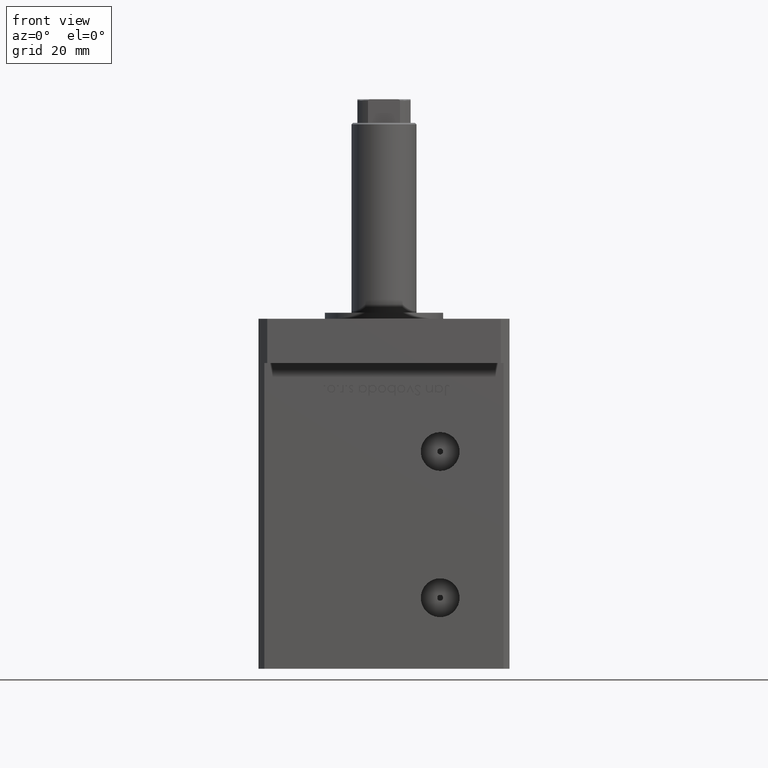
[diagram: clean part render]
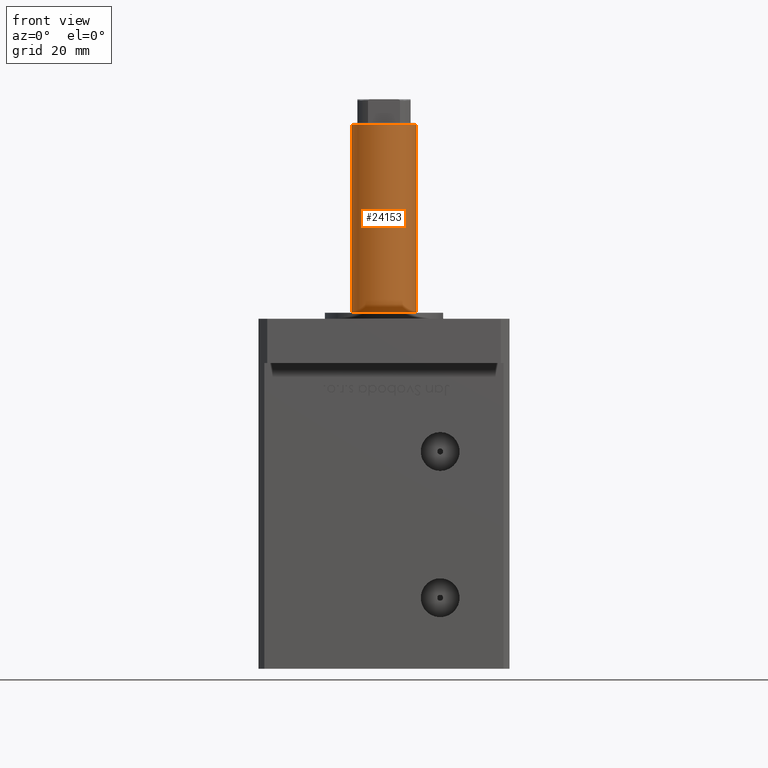
[diagram: same view with one face highlighted and labeled with its STEP entity id]
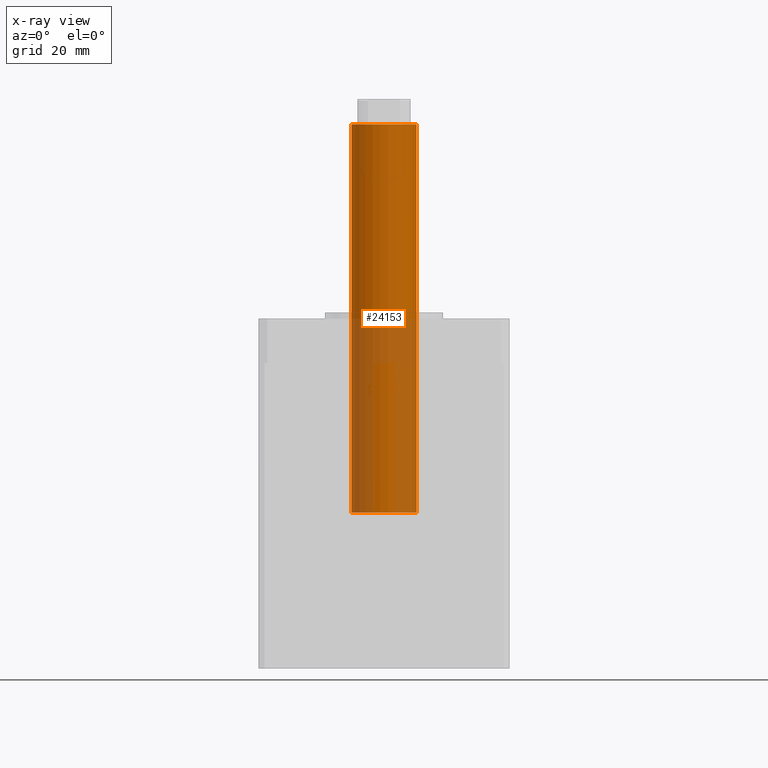
[diagram: x-ray of the same camera — body ghosted, the highlighted face saturated]
A machine part, front view. The second image highlights one B-rep face of the part: STEP entity #24153.
The next image is the same camera in x-ray: the body ghosted, the highlighted face saturated — about 38% of this face is hidden behind the body in this view.
In plain terms, the highlighted cylindrical surface (edge-blend (fillet) strip) has radius 11 mm, axis along (-0, -0, -1).
Its self-contained STEP definition (entity closure, byte-faithful):
#36 = CARTESIAN_POINT ( 'NONE',  ( -11.00000000000000000, 0.000000000000000000, 161.5000000000000000 ) ) ;
#1754 = DIRECTION ( 'NONE',  ( 1.000000000000000000, 0.000000000000000000, 0.000000000000000000 ) ) ;
#2760 = DIRECTION ( 'NONE',  ( -0.000000000000000000, -0.000000000000000000, -1.000000000000000000 ) ) ;
#2870 = EDGE_CURVE ( 'NONE', #9031, #25537, #35980, .T. ) ;
#3883 = EDGE_CURVE ( 'NONE', #43832, #7053, #16045, .T. ) ;
#4525 = CARTESIAN_POINT ( 'NONE',  ( 11.00000000000000000, 1.347111479062088405E-15, 30.00000000000000000 ) ) ;
#6136 = ORIENTED_EDGE ( 'NONE', *, *, #2870, .T. ) ;
#6296 = CARTESIAN_POINT ( 'NONE',  ( 0.000000000000000000, 0.000000000000000000, 162.0000000000000000 ) ) ;
#7053 = VERTEX_POINT ( 'NONE', #4525 ) ;
#8793 = CARTESIAN_POINT ( 'NONE',  ( 11.00000000000000000, 1.347111479062088405E-15, 161.5000000000000000 ) ) ;
#9031 = VERTEX_POINT ( 'NONE', #8793 ) ;
#9609 = DIRECTION ( 'NONE',  ( 0.000000000000000000, 0.000000000000000000, 1.000000000000000000 ) ) ;
#9730 = ORIENTED_EDGE ( 'NONE', *, *, #42488, .F. ) ;
#16045 = CIRCLE ( 'NONE', #53327, 11.00000000000000000 ) ;
#17195 = VECTOR ( 'NONE', #46545, 1000.000000000000000 ) ;
#24153 = ADVANCED_FACE ( 'NONE', ( #26373 ), #35332, .T. ) ;
#24533 = ORIENTED_EDGE ( 'NONE', *, *, #3883, .T. ) ;
#25537 = VERTEX_POINT ( 'NONE', #36 ) ;
#26373 = FACE_OUTER_BOUND ( 'NONE', #37872, .T. ) ;
#27296 = DIRECTION ( 'NONE',  ( 1.000000000000000000, 0.000000000000000000, 0.000000000000000000 ) ) ;
#29769 = AXIS2_PLACEMENT_3D ( 'NONE', #6296, #2760, #30712 ) ;
#30022 = ORIENTED_EDGE ( 'NONE', *, *, #33850, .T. ) ;
#30712 = DIRECTION ( 'NONE',  ( -1.000000000000000000, 0.000000000000000000, 0.000000000000000000 ) ) ;
#32703 = VECTOR ( 'NONE', #49184, 1000.000000000000000 ) ;
#33850 = EDGE_CURVE ( 'NONE', #25537, #43832, #41043, .T. ) ;
#34349 = CARTESIAN_POINT ( 'NONE',  ( 11.00000000000000000, 1.347111479062088405E-15, 162.0000000000000000 ) ) ;
#35332 = CYLINDRICAL_SURFACE ( 'NONE', #29769, 11.00000000000000000 ) ;
#35980 = CIRCLE ( 'NONE', #37671, 11.00000000000000000 ) ;
#37671 = AXIS2_PLACEMENT_3D ( 'NONE', #39775, #43843, #27296 ) ;
#37872 = EDGE_LOOP ( 'NONE', ( #9730, #6136, #30022, #24533 ) ) ;
#39775 = CARTESIAN_POINT ( 'NONE',  ( 0.000000000000000000, 0.000000000000000000, 161.5000000000000000 ) ) ;
#41043 = LINE ( 'NONE', #45368, #32703 ) ;
#42488 = EDGE_CURVE ( 'NONE', #9031, #7053, #50605, .T. ) ;
#42647 = CARTESIAN_POINT ( 'NONE',  ( -11.00000000000000000, 0.000000000000000000, 30.00000000000000000 ) ) ;
#42714 = CARTESIAN_POINT ( 'NONE',  ( 0.000000000000000000, 0.000000000000000000, 30.00000000000000000 ) ) ;
#43832 = VERTEX_POINT ( 'NONE', #42647 ) ;
#43843 = DIRECTION ( 'NONE',  ( 0.000000000000000000, 0.000000000000000000, -1.000000000000000000 ) ) ;
#45368 = CARTESIAN_POINT ( 'NONE',  ( -11.00000000000000000, 0.000000000000000000, 162.0000000000000000 ) ) ;
#46545 = DIRECTION ( 'NONE',  ( -0.000000000000000000, -0.000000000000000000, -1.000000000000000000 ) ) ;
#49184 = DIRECTION ( 'NONE',  ( -0.000000000000000000, -0.000000000000000000, -1.000000000000000000 ) ) ;
#50605 = LINE ( 'NONE', #34349, #17195 ) ;
#53327 = AXIS2_PLACEMENT_3D ( 'NONE', #42714, #9609, #1754 ) ;